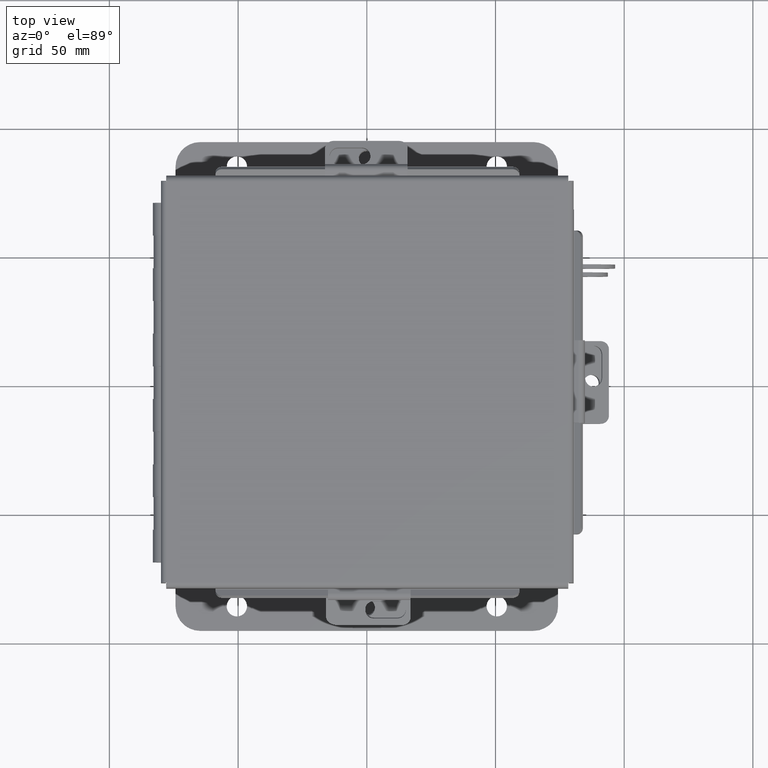
[diagram: clean part render]
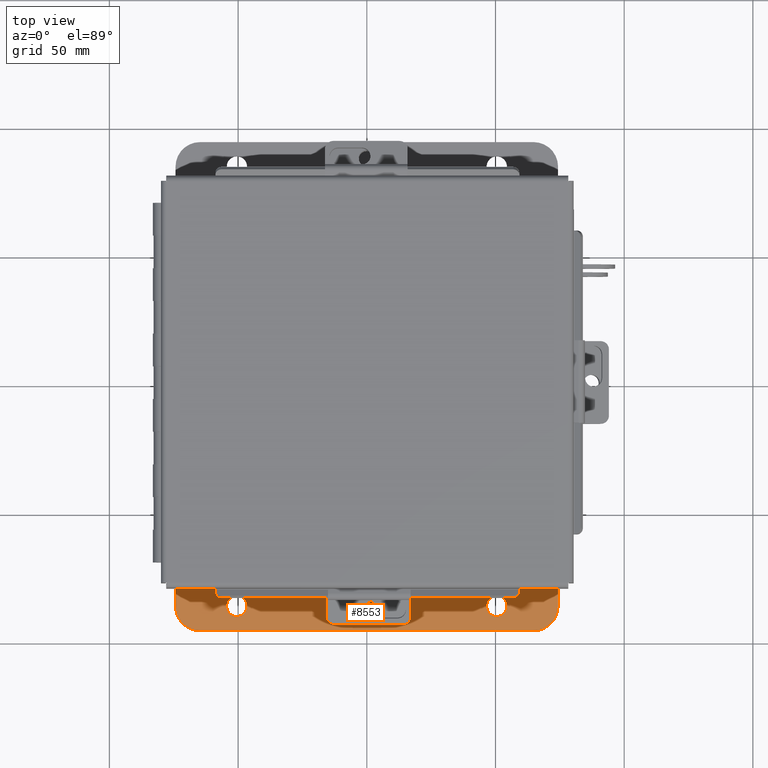
[diagram: same view with one face highlighted and labeled with its STEP entity id]
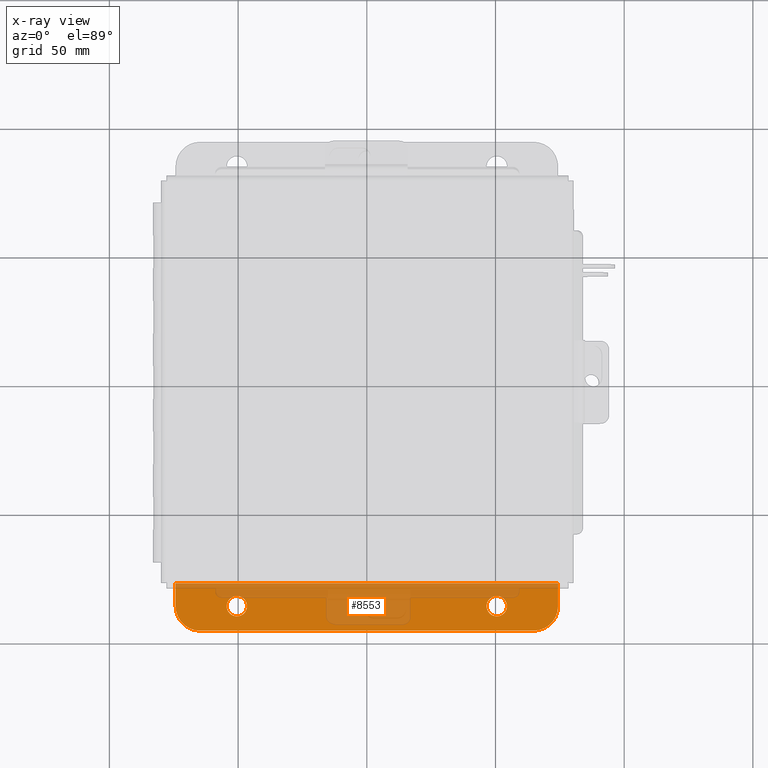
[diagram: x-ray of the same camera — body ghosted, the highlighted face saturated]
A machine part, top view. The second image highlights one B-rep face of the part: STEP entity #8553.
The next image is the same camera in x-ray: the body ghosted, the highlighted face saturated — about 41% of this face is hidden behind the body in this view.
In plain terms, the highlighted planar face has unit normal (0, -0, 1).
Its self-contained STEP definition (entity closure, byte-faithful):
#129 = DIRECTION ( 'NONE',  ( 0.0000000000000000000, 3.332425039709726500E-015, 1.000000000000000000 ) ) ;
#489 = AXIS2_PLACEMENT_3D ( 'NONE', #7859, #1294, #10051 ) ;
#531 = CARTESIAN_POINT ( 'NONE',  ( -2.925300000000004500, 0.01299999999999956100, -2.112299999999999400 ) ) ;
#564 = CARTESIAN_POINT ( 'NONE',  ( -2.550299999999999100, 0.7378000000000005700, -2.112300000000001600 ) ) ;
#807 = VERTEX_POINT ( 'NONE', #5380 ) ;
#1294 = DIRECTION ( 'NONE',  ( -0.0000000000000000000, -3.332425039709726500E-015, -1.000000000000000000 ) ) ;
#1416 = AXIS2_PLACEMENT_3D ( 'NONE', #6151, #13835, #7263 ) ;
#1578 = CARTESIAN_POINT ( 'NONE',  ( 1.987800000000001300, 0.3628000000000046700, -2.112299999999999800 ) ) ;
#1787 = AXIS2_PLACEMENT_3D ( 'NONE', #1578, #9254, #2667 ) ;
#1854 = VERTEX_POINT ( 'NONE', #5853 ) ;
#1869 = CARTESIAN_POINT ( 'NONE',  ( 2.925299999999995100, 4.370956789862821100E-015, -2.112299999999999400 ) ) ;
#2062 = FACE_OUTER_BOUND ( 'NONE', #10472, .T. ) ;
#2097 = ORIENTED_EDGE ( 'NONE', *, *, #7299, .F. ) ;
#2302 = DIRECTION ( 'NONE',  ( 0.0000000000000000000, 3.332425039709726500E-015, 1.000000000000000000 ) ) ;
#2319 = CIRCLE ( 'NONE', #1416, 0.1560000000000001700 ) ;
#2604 = EDGE_CURVE ( 'NONE', #3403, #6302, #2959, .T. ) ;
#2667 = DIRECTION ( 'NONE',  ( 0.0000000000000000000, -1.000000000000000000, 3.502369222646487400E-015 ) ) ;
#2722 = VECTOR ( 'NONE', #5823, 39.37007874015748100 ) ;
#2766 = DIRECTION ( 'NONE',  ( -1.555753819465285400E-061, 3.332425039709726500E-015, 1.000000000000000000 ) ) ;
#2959 = LINE ( 'NONE', #9884, #5882 ) ;
#3298 = AXIS2_PLACEMENT_3D ( 'NONE', #10360, #3746, #11451 ) ;
#3403 = VERTEX_POINT ( 'NONE', #7504 ) ;
#3716 = EDGE_CURVE ( 'NONE', #8829, #12501, #11107, .T. ) ;
#3746 = DIRECTION ( 'NONE',  ( -0.0000000000000000000, -3.332425039709726500E-015, -1.000000000000000000 ) ) ;
#3847 = ORIENTED_EDGE ( 'NONE', *, *, #12663, .F. ) ;
#4106 = CIRCLE ( 'NONE', #11100, 0.3750000000000000600 ) ;
#4221 = DIRECTION ( 'NONE',  ( -1.000000000000000000, -4.910036603141682400E-031, 0.0000000000000000000 ) ) ;
#4227 = EDGE_LOOP ( 'NONE', ( #12720, #13234 ) ) ;
#4253 = EDGE_LOOP ( 'NONE', ( #5456, #8577 ) ) ;
#4418 = ORIENTED_EDGE ( 'NONE', *, *, #3716, .T. ) ;
#4599 = CIRCLE ( 'NONE', #3298, 0.1560000000000001700 ) ;
#4772 = VECTOR ( 'NONE', #12872, 39.37007874015748100 ) ;
#4976 = EDGE_CURVE ( 'NONE', #11592, #10512, #2319, .T. ) ;
#4990 = FACE_BOUND ( 'NONE', #4227, .T. ) ;
#5113 = LINE ( 'NONE', #1869, #4772 ) ;
#5380 = CARTESIAN_POINT ( 'NONE',  ( -2.925300000000000500, 0.3628000000000002900, -2.112300000000000300 ) ) ;
#5456 = ORIENTED_EDGE ( 'NONE', *, *, #4976, .T. ) ;
#5613 = DIRECTION ( 'NONE',  ( 0.0000000000000000000, -1.000000000000000000, 3.642463991552350200E-015 ) ) ;
#5712 = CARTESIAN_POINT ( 'NONE',  ( 1.987799999999999100, 0.5188000000000048100, -2.112300000000000700 ) ) ;
#5823 = DIRECTION ( 'NONE',  ( 3.994427860841574400E-031, 1.000000000000000000, -3.332425039709726500E-015 ) ) ;
#5830 = CARTESIAN_POINT ( 'NONE',  ( 2.925299999999999600, 0.7378000000000043400, -2.112300000000001600 ) ) ;
#5853 = CARTESIAN_POINT ( 'NONE',  ( -1.987800000000000000, 0.5188000000000004800, -2.112300000000000700 ) ) ;
#5882 = VECTOR ( 'NONE', #4221, 39.37007874015748100 ) ;
#6040 = PLANE ( 'NONE',  #6953 ) ;
#6151 = CARTESIAN_POINT ( 'NONE',  ( 1.987800000000001300, 0.3628000000000046700, -2.112299999999999800 ) ) ;
#6302 = VERTEX_POINT ( 'NONE', #531 ) ;
#6576 = CARTESIAN_POINT ( 'NONE',  ( 1.987799999999999100, 0.2068000000000045100, -2.112299999999999400 ) ) ;
#6691 = CARTESIAN_POINT ( 'NONE',  ( -2.550299999999999100, 0.3628000000000002900, -2.112300000000000300 ) ) ;
#6766 = CIRCLE ( 'NONE', #489, 0.1560000000000001700 ) ;
#6814 = EDGE_CURVE ( 'NONE', #9083, #1854, #6766, .T. ) ;
#6953 = AXIS2_PLACEMENT_3D ( 'NONE', #13710, #2766, #10453 ) ;
#7179 = ORIENTED_EDGE ( 'NONE', *, *, #2604, .F. ) ;
#7263 = DIRECTION ( 'NONE',  ( 0.0000000000000000000, -1.000000000000000000, 3.502369222646487400E-015 ) ) ;
#7299 = EDGE_CURVE ( 'NONE', #8591, #12501, #12599, .T. ) ;
#7504 = CARTESIAN_POINT ( 'NONE',  ( 2.925299999999995100, 0.01300000000000393200, -2.112299999999999400 ) ) ;
#7801 = DIRECTION ( 'NONE',  ( 0.0000000000000000000, -1.000000000000000000, 3.642463991552350200E-015 ) ) ;
#7859 = CARTESIAN_POINT ( 'NONE',  ( -1.987799999999997800, 0.3628000000000002900, -2.112299999999999800 ) ) ;
#8498 = EDGE_CURVE ( 'NONE', #10512, #11592, #11537, .T. ) ;
#8553 = ADVANCED_FACE ( 'NONE', ( #4990, #10838, #2062 ), #6040, .T. ) ;
#8562 = LINE ( 'NONE', #13519, #2722 ) ;
#8577 = ORIENTED_EDGE ( 'NONE', *, *, #8498, .T. ) ;
#8591 = VERTEX_POINT ( 'NONE', #564 ) ;
#8829 = VERTEX_POINT ( 'NONE', #14145 ) ;
#8989 = EDGE_CURVE ( 'NONE', #8591, #807, #4106, .T. ) ;
#9083 = VERTEX_POINT ( 'NONE', #10114 ) ;
#9254 = DIRECTION ( 'NONE',  ( -0.0000000000000000000, -3.332425039709726500E-015, -1.000000000000000000 ) ) ;
#9673 = VECTOR ( 'NONE', #9876, 39.37007874015748100 ) ;
#9876 = DIRECTION ( 'NONE',  ( 1.000000000000000000, 4.910036603141682400E-031, -0.0000000000000000000 ) ) ;
#9884 = CARTESIAN_POINT ( 'NONE',  ( 2.925299999999995100, 0.01300000000000447800, -2.112299999999999400 ) ) ;
#9892 = CARTESIAN_POINT ( 'NONE',  ( 2.550299999999999100, 0.3628000000000046700, -2.112300000000000300 ) ) ;
#10051 = DIRECTION ( 'NONE',  ( 0.0000000000000000000, -1.000000000000000000, 3.502369222646487400E-015 ) ) ;
#10114 = CARTESIAN_POINT ( 'NONE',  ( -1.987800000000000000, 0.2068000000000001200, -2.112299999999999400 ) ) ;
#10172 = ORIENTED_EDGE ( 'NONE', *, *, #12355, .F. ) ;
#10360 = CARTESIAN_POINT ( 'NONE',  ( -1.987799999999997800, 0.3628000000000002900, -2.112299999999999800 ) ) ;
#10453 = DIRECTION ( 'NONE',  ( -3.994427860841588400E-031, -1.000000000000000000, 3.332425039709726500E-015 ) ) ;
#10472 = EDGE_LOOP ( 'NONE', ( #2097, #12175, #10172, #7179, #3847, #4418 ) ) ;
#10512 = VERTEX_POINT ( 'NONE', #6576 ) ;
#10588 = AXIS2_PLACEMENT_3D ( 'NONE', #9892, #2302, #5613 ) ;
#10838 = FACE_BOUND ( 'NONE', #4253, .T. ) ;
#11100 = AXIS2_PLACEMENT_3D ( 'NONE', #6691, #129, #7801 ) ;
#11107 = CIRCLE ( 'NONE', #10588, 0.3750000000000000600 ) ;
#11451 = DIRECTION ( 'NONE',  ( 0.0000000000000000000, -1.000000000000000000, 3.502369222646487400E-015 ) ) ;
#11537 = CIRCLE ( 'NONE', #1787, 0.1560000000000001700 ) ;
#11550 = CARTESIAN_POINT ( 'NONE',  ( 2.550299999999999100, 0.7378000000000043400, -2.112300000000001600 ) ) ;
#11592 = VERTEX_POINT ( 'NONE', #5712 ) ;
#12175 = ORIENTED_EDGE ( 'NONE', *, *, #8989, .T. ) ;
#12355 = EDGE_CURVE ( 'NONE', #6302, #807, #8562, .T. ) ;
#12440 = EDGE_CURVE ( 'NONE', #1854, #9083, #4599, .T. ) ;
#12501 = VERTEX_POINT ( 'NONE', #11550 ) ;
#12599 = LINE ( 'NONE', #5830, #9673 ) ;
#12663 = EDGE_CURVE ( 'NONE', #8829, #3403, #5113, .T. ) ;
#12720 = ORIENTED_EDGE ( 'NONE', *, *, #12440, .T. ) ;
#12872 = DIRECTION ( 'NONE',  ( -3.994427860841574400E-031, -1.000000000000000000, 3.332425039709726500E-015 ) ) ;
#13234 = ORIENTED_EDGE ( 'NONE', *, *, #6814, .T. ) ;
#13519 = CARTESIAN_POINT ( 'NONE',  ( -2.925300000000000500, 0.7378000000000005700, -2.112300000000001600 ) ) ;
#13710 = CARTESIAN_POINT ( 'NONE',  ( 0.0000000000000000000, -2.185478394931410600E-015, -2.112299999999999400 ) ) ;
#13835 = DIRECTION ( 'NONE',  ( -0.0000000000000000000, -3.332425039709726500E-015, -1.000000000000000000 ) ) ;
#14145 = CARTESIAN_POINT ( 'NONE',  ( 2.925299999999999600, 0.3628000000000046700, -2.112300000000000300 ) ) ;